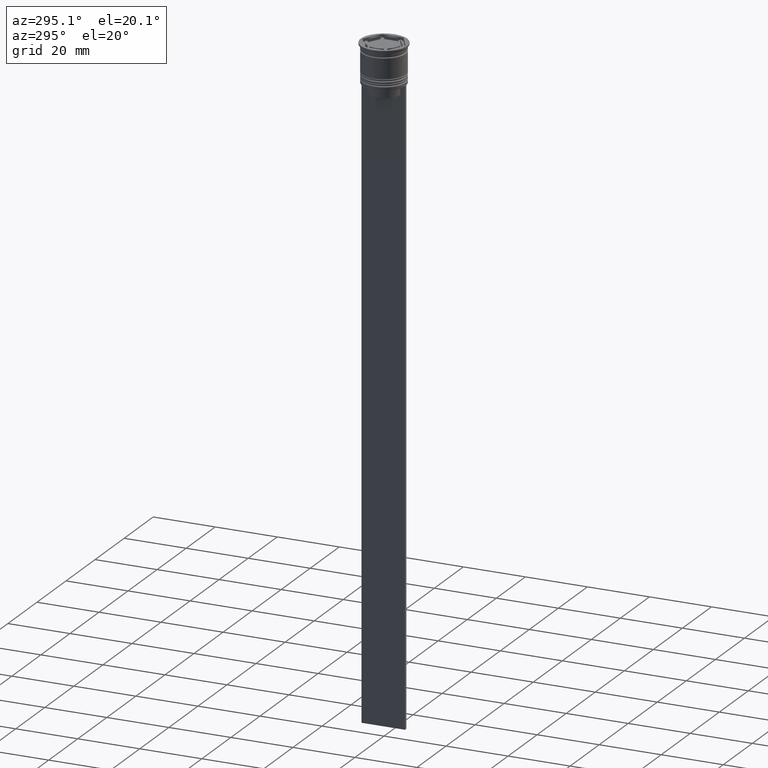
[diagram: clean part render]
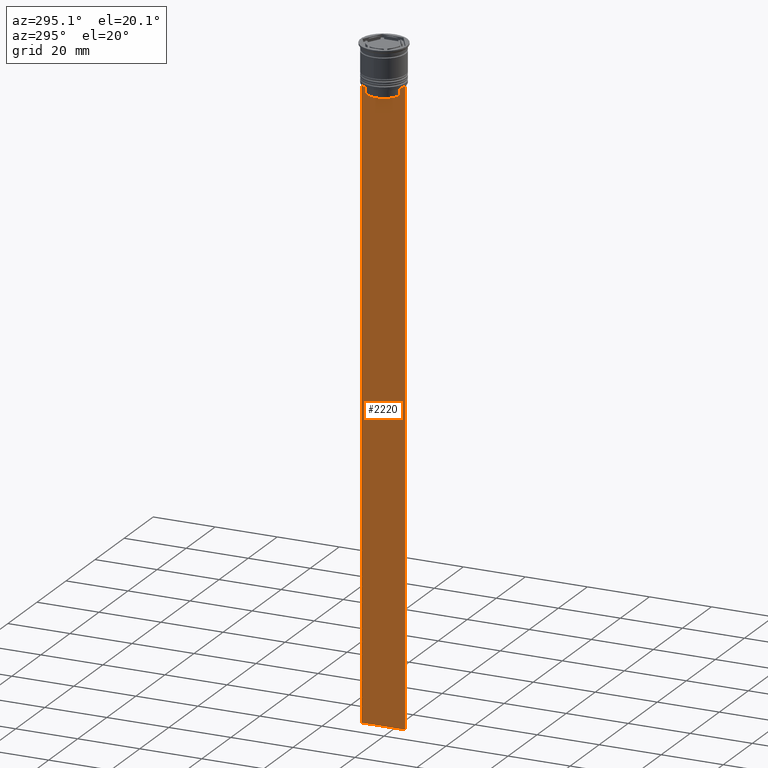
[diagram: same view with one face highlighted and labeled with its STEP entity id]
A machine part, auxiliary view. The second image highlights one B-rep face of the part: STEP entity #2220.
In plain terms, the highlighted planar face has unit normal (-1, 0, 0).
Its self-contained STEP definition (entity closure, byte-faithful):
#2 = VECTOR ( 'NONE', #1126, 1000.000000000000000 ) ;
#27 = CARTESIAN_POINT ( 'NONE',  ( -0.5000000000000000000, 5.400000000000003908, -15.50000000000000000 ) ) ;
#43 = DIRECTION ( 'NONE',  ( 0.000000000000000000, -1.000000000000000000, 0.000000000000000000 ) ) ;
#71 = CARTESIAN_POINT ( 'NONE',  ( -0.5000000000000000000, -5.376802023508029826, -13.00000000000000178 ) ) ;
#75 = CARTESIAN_POINT ( 'NONE',  ( -0.5000000000000000000, 5.376802023508029826, -13.00000000000000178 ) ) ;
#88 = VERTEX_POINT ( 'NONE', #537 ) ;
#94 = CARTESIAN_POINT ( 'NONE',  ( -0.5000000000000000000, -5.878775382679629402, -12.50000000000000000 ) ) ;
#163 = VECTOR ( 'NONE', #1335, 1000.000000000000000 ) ;
#207 = AXIS2_PLACEMENT_3D ( 'NONE', #1633, #1023, #1615 ) ;
#276 = CARTESIAN_POINT ( 'NONE',  ( -0.5000000000000000000, 5.376802023508029826, -13.00000000000000178 ) ) ;
#302 = EDGE_CURVE ( 'NONE', #1554, #1592, #928, .T. ) ;
#310 = CARTESIAN_POINT ( 'NONE',  ( -0.5000000000000000000, -6.999999999999997335, -212.5000000000000284 ) ) ;
#317 = VECTOR ( 'NONE', #1290, 1000.000000000000000 ) ;
#343 = LINE ( 'NONE', #1288, #1537 ) ;
#347 = CARTESIAN_POINT ( 'NONE',  ( -0.5000000000000000000, 6.881860213634102053, -12.50000000000000000 ) ) ;
#353 = EDGE_CURVE ( 'NONE', #1504, #806, #1525, .T. ) ;
#361 = ORIENTED_EDGE ( 'NONE', *, *, #2420, .F. ) ;
#364 = B_SPLINE_CURVE_WITH_KNOTS ( 'NONE', 3,
 ( #737, #1508, #549, #2297 ),
 .UNSPECIFIED., .F., .F.,
 ( 4, 4 ),
 ( 0.02539176325380714666, 0.02610162431828674801 ),
 .UNSPECIFIED. ) ;
#366 = CARTESIAN_POINT ( 'NONE',  ( -0.5000000000000000000, -6.999999999999997335, -12.50000000000000000 ) ) ;
#382 = CARTESIAN_POINT ( 'NONE',  ( -0.5000000000000000000, -5.376802023508029826, -15.50000000000000000 ) ) ;
#385 = LINE ( 'NONE', #1692, #163 ) ;
#391 = EDGE_CURVE ( 'NONE', #1452, #2112, #803, .T. ) ;
#398 = VECTOR ( 'NONE', #1268, 1000.000000000000000 ) ;
#415 = FACE_OUTER_BOUND ( 'NONE', #1513, .T. ) ;
#466 = CARTESIAN_POINT ( 'NONE',  ( -0.5000000000000000000, -5.376802023508029826, 0.000000000000000000 ) ) ;
#498 = CARTESIAN_POINT ( 'NONE',  ( -0.5000000000000000000, 5.376802023508029826, -15.50000000000000000 ) ) ;
#507 = CARTESIAN_POINT ( 'NONE',  ( -0.5000000000000000000, -6.881860213634102053, -12.50000000000000000 ) ) ;
#528 = CARTESIAN_POINT ( 'NONE',  ( -0.5000000000000000000, -6.999999999999997335, -12.50000000000000000 ) ) ;
#537 = CARTESIAN_POINT ( 'NONE',  ( -0.5000000000000000000, 7.000000000000002665, -12.50000000000000000 ) ) ;
#549 = CARTESIAN_POINT ( 'NONE',  ( -0.5000000000000000000, -5.711478856069293286, -12.66669469529570335 ) ) ;
#623 = ORIENTED_EDGE ( 'NONE', *, *, #947, .F. ) ;
#638 = LINE ( 'NONE', #466, #398 ) ;
#672 = PLANE ( 'NONE',  #207 ) ;
#737 = CARTESIAN_POINT ( 'NONE',  ( -0.5000000000000000000, -5.376802023508029826, -13.00000000000000178 ) ) ;
#803 = LINE ( 'NONE', #27, #1880 ) ;
#806 = VERTEX_POINT ( 'NONE', #507 ) ;
#813 = LINE ( 'NONE', #1593, #1524 ) ;
#815 = EDGE_CURVE ( 'NONE', #88, #2036, #1887, .T. ) ;
#825 = DIRECTION ( 'NONE',  ( 0.000000000000000000, -1.000000000000000000, 0.000000000000000000 ) ) ;
#856 = ORIENTED_EDGE ( 'NONE', *, *, #1097, .F. ) ;
#857 = LINE ( 'NONE', #1630, #1440 ) ;
#864 = EDGE_CURVE ( 'NONE', #2161, #2299, #1875, .T. ) ;
#900 = ORIENTED_EDGE ( 'NONE', *, *, #353, .F. ) ;
#907 = LINE ( 'NONE', #1888, #317 ) ;
#928 = LINE ( 'NONE', #310, #1362 ) ;
#945 = EDGE_CURVE ( 'NONE', #806, #1823, #813, .T. ) ;
#947 = EDGE_CURVE ( 'NONE', #2112, #1314, #638, .T. ) ;
#1021 = CARTESIAN_POINT ( 'NONE',  ( -0.5000000000000000000, 5.544156989057553275, -12.83336397825725861 ) ) ;
#1023 = DIRECTION ( 'NONE',  ( -1.000000000000000000, 0.000000000000000000, 0.000000000000000000 ) ) ;
#1046 = ORIENTED_EDGE ( 'NONE', *, *, #302, .F. ) ;
#1097 = EDGE_CURVE ( 'NONE', #2299, #1452, #857, .T. ) ;
#1126 = DIRECTION ( 'NONE',  ( 0.000000000000000000, -1.000000000000000000, 0.000000000000000000 ) ) ;
#1204 = ORIENTED_EDGE ( 'NONE', *, *, #1563, .F. ) ;
#1249 = DIRECTION ( 'NONE',  ( 0.000000000000000000, 0.000000000000000000, -1.000000000000000000 ) ) ;
#1268 = DIRECTION ( 'NONE',  ( -0.000000000000000000, -0.000000000000000000, 1.000000000000000000 ) ) ;
#1288 = CARTESIAN_POINT ( 'NONE',  ( -0.5000000000000000000, -6.999999999999997335, -12.50000000000000000 ) ) ;
#1290 = DIRECTION ( 'NONE',  ( 0.000000000000000000, 0.000000000000000000, -1.000000000000000000 ) ) ;
#1314 = VERTEX_POINT ( 'NONE', #71 ) ;
#1335 = DIRECTION ( 'NONE',  ( 0.000000000000000000, 0.000000000000000000, -1.000000000000000000 ) ) ;
#1358 = ORIENTED_EDGE ( 'NONE', *, *, #945, .F. ) ;
#1362 = VECTOR ( 'NONE', #1717, 1000.000000000000000 ) ;
#1440 = VECTOR ( 'NONE', #1249, 1000.000000000000000 ) ;
#1445 = CARTESIAN_POINT ( 'NONE',  ( -0.5000000000000000000, -6.999999999999997335, -12.50000000000000000 ) ) ;
#1452 = VERTEX_POINT ( 'NONE', #498 ) ;
#1504 = VERTEX_POINT ( 'NONE', #94 ) ;
#1508 = CARTESIAN_POINT ( 'NONE',  ( -0.5000000000000000000, -5.544156999454441959, -12.83336396790503642 ) ) ;
#1513 = EDGE_LOOP ( 'NONE', ( #2165, #361, #2111, #1515, #1046, #1204, #1358, #900, #1866, #623, #1971, #856 ) ) ;
#1515 = ORIENTED_EDGE ( 'NONE', *, *, #2039, .T. ) ;
#1524 = VECTOR ( 'NONE', #825, 1000.000000000000000 ) ;
#1525 = LINE ( 'NONE', #528, #2007 ) ;
#1537 = VECTOR ( 'NONE', #2459, 1000.000000000000000 ) ;
#1554 = VERTEX_POINT ( 'NONE', #1877 ) ;
#1563 = EDGE_CURVE ( 'NONE', #1823, #1554, #385, .T. ) ;
#1592 = VERTEX_POINT ( 'NONE', #2075 ) ;
#1593 = CARTESIAN_POINT ( 'NONE',  ( -0.5000000000000000000, -6.999999999999997335, -12.50000000000000000 ) ) ;
#1612 = CARTESIAN_POINT ( 'NONE',  ( -0.5000000000000000000, 5.878775382679629402, -12.50000000000000000 ) ) ;
#1615 = DIRECTION ( 'NONE',  ( 0.000000000000000000, 0.000000000000000000, 1.000000000000000000 ) ) ;
#1630 = CARTESIAN_POINT ( 'NONE',  ( -0.5000000000000000000, 5.376802023508029826, 0.000000000000000000 ) ) ;
#1633 = CARTESIAN_POINT ( 'NONE',  ( -0.5000000000000000000, -6.999999999999997335, 1.535668847618198329 ) ) ;
#1692 = CARTESIAN_POINT ( 'NONE',  ( -0.5000000000000000000, -6.999999999999997335, 1.535668847618198329 ) ) ;
#1717 = DIRECTION ( 'NONE',  ( 0.000000000000000000, 1.000000000000000000, 0.000000000000000000 ) ) ;
#1725 = CARTESIAN_POINT ( 'NONE',  ( -0.5000000000000000000, 5.878775382679629402, -12.50000000000000000 ) ) ;
#1823 = VERTEX_POINT ( 'NONE', #1445 ) ;
#1866 = ORIENTED_EDGE ( 'NONE', *, *, #2017, .F. ) ;
#1875 = B_SPLINE_CURVE_WITH_KNOTS ( 'NONE', 3,
 ( #1612, #2361, #1021, #75 ),
 .UNSPECIFIED., .F., .F.,
 ( 4, 4 ),
 ( 0.01003009312103698807, 0.01073859663834952557 ),
 .UNSPECIFIED. ) ;
#1877 = CARTESIAN_POINT ( 'NONE',  ( -0.5000000000000000000, -6.999999999999997335, -212.5000000000000284 ) ) ;
#1880 = VECTOR ( 'NONE', #43, 1000.000000000000000 ) ;
#1887 = LINE ( 'NONE', #366, #2 ) ;
#1888 = CARTESIAN_POINT ( 'NONE',  ( -0.5000000000000000000, 7.000000000000002665, 1.535668847618198329 ) ) ;
#1971 = ORIENTED_EDGE ( 'NONE', *, *, #391, .F. ) ;
#2007 = VECTOR ( 'NONE', #2284, 1000.000000000000000 ) ;
#2017 = EDGE_CURVE ( 'NONE', #1314, #1504, #364, .T. ) ;
#2036 = VERTEX_POINT ( 'NONE', #347 ) ;
#2039 = EDGE_CURVE ( 'NONE', #88, #1592, #907, .T. ) ;
#2075 = CARTESIAN_POINT ( 'NONE',  ( -0.5000000000000000000, 7.000000000000002665, -212.5000000000000284 ) ) ;
#2111 = ORIENTED_EDGE ( 'NONE', *, *, #815, .F. ) ;
#2112 = VERTEX_POINT ( 'NONE', #382 ) ;
#2161 = VERTEX_POINT ( 'NONE', #1725 ) ;
#2165 = ORIENTED_EDGE ( 'NONE', *, *, #864, .F. ) ;
#2220 = ADVANCED_FACE ( 'NONE', ( #415 ), #672, .T. ) ;
#2284 = DIRECTION ( 'NONE',  ( 0.000000000000000000, -1.000000000000000000, 0.000000000000000000 ) ) ;
#2297 = CARTESIAN_POINT ( 'NONE',  ( -0.5000000000000000000, -5.878775382679629402, -12.50000000000000000 ) ) ;
#2299 = VERTEX_POINT ( 'NONE', #276 ) ;
#2361 = CARTESIAN_POINT ( 'NONE',  ( -0.5000000000000000000, 5.711478846560141598, -12.66669470477064685 ) ) ;
#2420 = EDGE_CURVE ( 'NONE', #2036, #2161, #343, .T. ) ;
#2459 = DIRECTION ( 'NONE',  ( 0.000000000000000000, -1.000000000000000000, 0.000000000000000000 ) ) ;